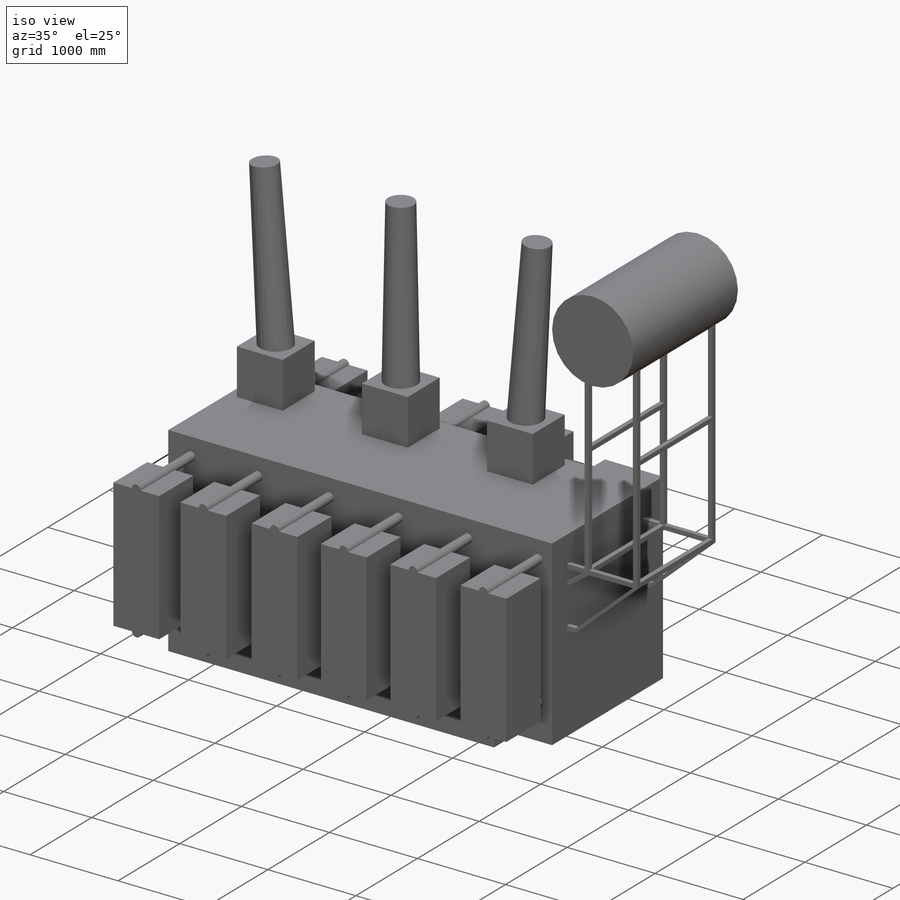
[diagram: iso view]
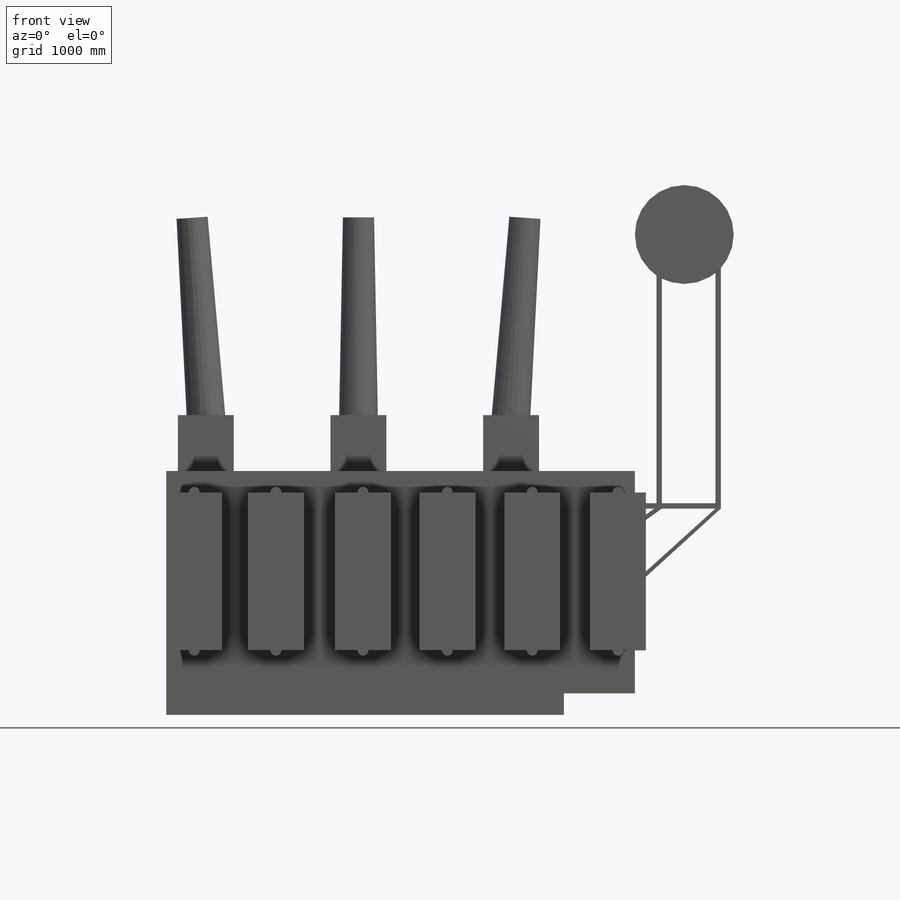
[diagram: front view]
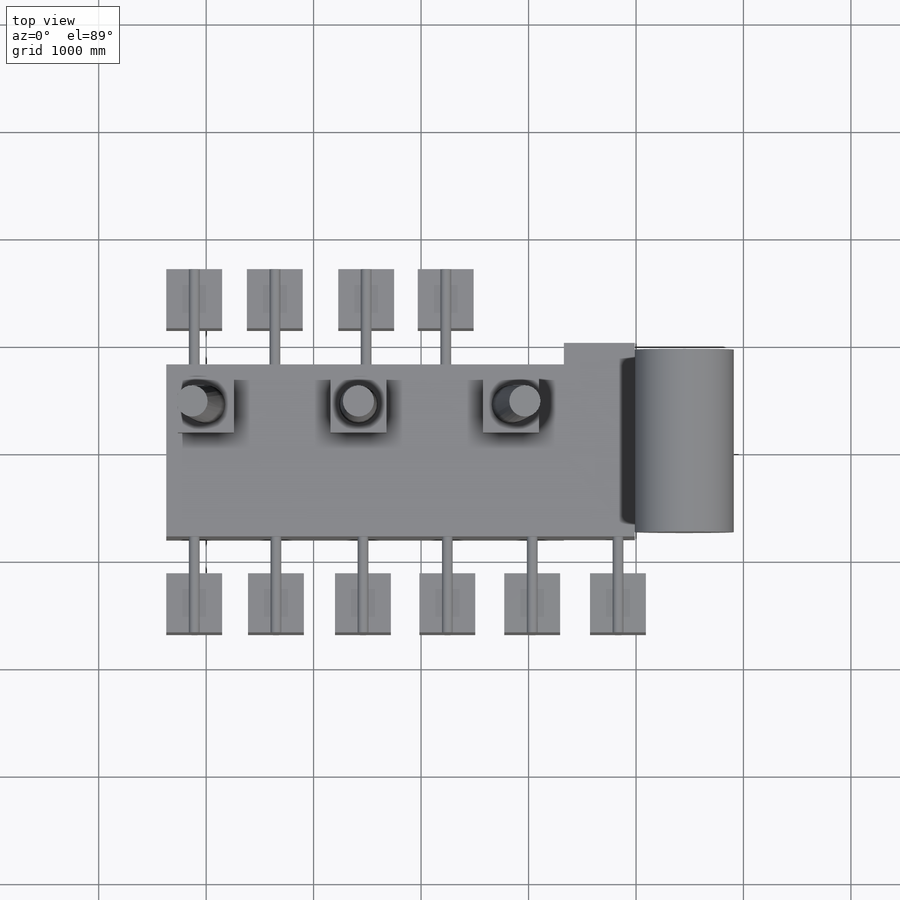
[diagram: top view]
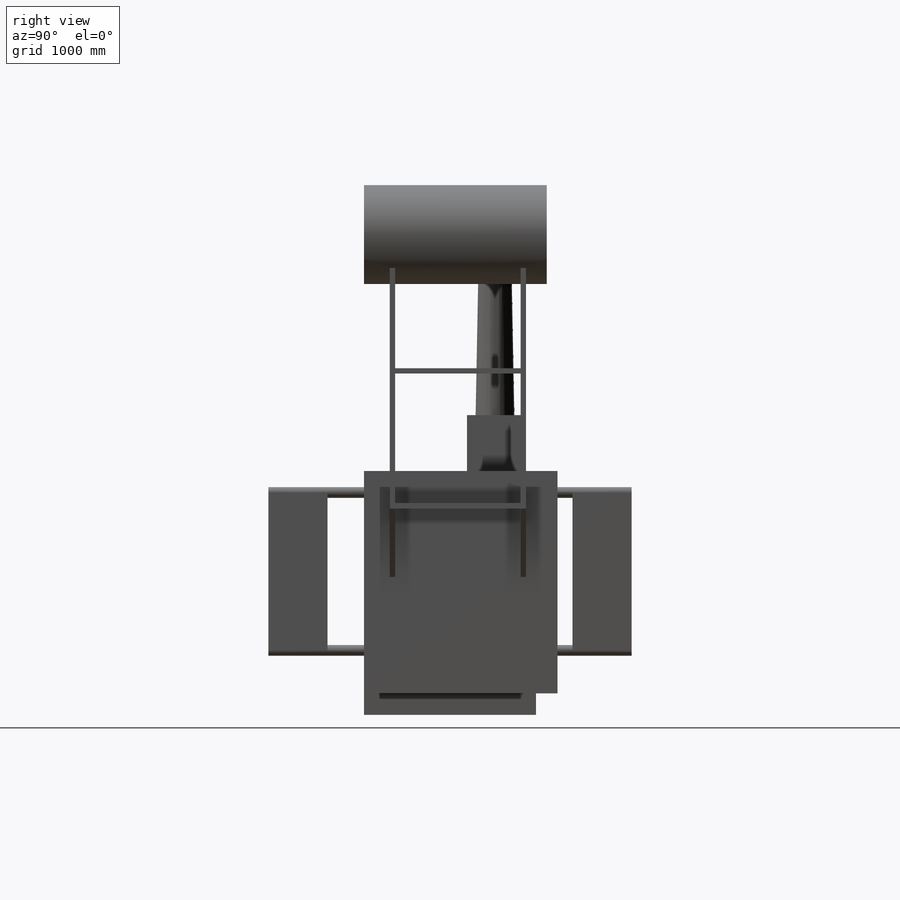
[diagram: right view]
SOLIDWORKS PART (.sldprt)
format: sldprt  version: not decoded by parser v0  size: 942,080 bytes
history: native  units: mm
features: sketch x22, extrude x16, cut_extrude x3, revolve x3, plane x2, material x1 (+14 scaffold rows collapsed; 3 parser-record rows omitted)
feature tree (64):
  scaffold x14  (default folders/planes/origin — collapsed)
  material  "Material <not specified>"
  parser-record x3  (decoder bookkeeping rows leaked as tree rows — omitted from the tree; the rows remain in map.json)
  sketch  "Sketch2"  dims[c1.D1=~51.143824mm c1.D2=~84.752623mm c2.D1=2270.0mm c2.D2=4360.0mm c2.D3=3208.8542mm]
  extrude  "Boss-Extrude1"  Depth=1800mm
  sketch  "Sketch3"  dims[c1.D1=400.0mm c1.D2=~2510.717925mm c2.D1=~199.704337mm c2.D2=3700.0mm c3.D1=~756.187776mm c3.D2=~127.668615mm]
  cut_extrude  "Cut-Extrude1"  Depth=1800mm
  sketch  "Sketch5"  dims[D1=~199.704337mm D2=3700.0mm]
  cut_extrude  "Cut-Extrude2"  Depth=1800mm
  sketch  "Sketch6"  dims[D1=340.0mm D2=550.0mm D3=520.0mm]
  extrude  "Boss-Extrude2"  Depth=1470mm
  sketch  "Sketch7"  dims[D1=550.0mm]
  extrude  "Boss-Extrude3"  Depth=1470mm
  sketch  "Sketch9"  dims[c1.D1=100.0mm c1.D2=100.0mm c2.D1=~286.239967mm]
  sketch  "Sketch10"  dims[D1=~224.270668mm]
  cut_extrude  "Cut-Extrude3"  Depth=2761mm
  sketch  "Sketch11"  dims[D1=~312.850983mm]
  extrude  "Boss-Extrude4"  Depth=200mm
  extrude  "Boss-Extrude5"  [1 undecoded]
  sketch  "Sketch12"  dims[D1=100.0mm]
  extrude  "Boss-Extrude6"  [1 undecoded]
  sketch  "Sketch13"  dims[D1=100.0mm]
  extrude  "Boss-Extrude7"  [1 undecoded]
  sketch  "Sketch15"  dims[c1.D1=520.0mm c1.D2=520.0mm c2.D1=52.0mm c2.D2=~493.39554mm c3.D1=520.0mm c3.D2=520.0mm c4.D1=520.0mm c4.D2=520.0mm c5.D1=~33.247471mm c5.D2=~2396.847372mm]
  extrude  "Boss-Extrude8"  Depth=520mm
  plane  "Plane3"  Offset=260mm
  sketch  "Sketch19"  dims[c1.D1=~1419.984277mm c2.D1=86.0deg c3.D1=145.0mm c4.D1=90.0deg c4.D2=145.0mm c5.D2=90.0deg c5.D3=~245.343883mm c6.D2=~180.476727mm]
  revolve  "Revolve4"  Angle=360deg
  revolve  "Revolve5"  [1 undecoded]
  sketch  "Sketch19<6>"  dims[D1=360.0deg]
  revolve  "Revolve6"  [1 undecoded]
  sketch  "Sketch19<7>"  dims[D1=360.0deg]
  sketch  "Sketch20"  dims[D1=460.0mm]
  extrude  "Boss-Extrude9"  Depth=1700mm
  sketch  "Sketch21"  dims[c1.D1=50.0mm c1.D2=50.0mm c2.D1=50.0mm c2.D2=50.0mm]
  extrude  "Boss-Extrude10"  Depth=800mm
  sketch  "Sketch22"  dims[D1=~126.520483mm]
  extrude  "Boss-Extrude12"  Depth=50mm
  sketch  "Sketch25"  dims[D2=~898.768265mm D1=0.0mm]
  extrude  "Boss-Extrude13"  Depth=50mm
  sketch  "Sketch26"  dims[c1.D1=~50.276712mm c1.D2=50.0mm c2.D1=50.0mm c2.D2=50.0mm c3.D1=50.0mm c3.D2=50.0mm c4.D1=50.0mm c4.D2=50.0mm]
  extrude  "Boss-Extrude14"  [1 undecoded]
  sketch  "Sketch27"  dims[D1=0.0mm]
  extrude  "Boss-Extrude15"  [1 undecoded]
  sketch  "Sketch29"  dims[D1=0.0mm]
  extrude  "Boss-Extrude16"  [1 undecoded]
  plane  "Plane5"  Offset=610mm
  sketch  "Sketch30"  dims[D1=2800.0mm D2=5360.0mm]
  extrude  "Boss-Extrude17"  Depth=200mm ModelUUID=0mm UUID=0mm
decode coverage: 36 of 44 modeling features carry decoded parameters
note: ~ marks probable driven/reference dimensions
note: 8 parameter values undecoded
summary: no parameter record found for 8 features
note: suppression state not decoded; provenance and decode notes live in map.json
